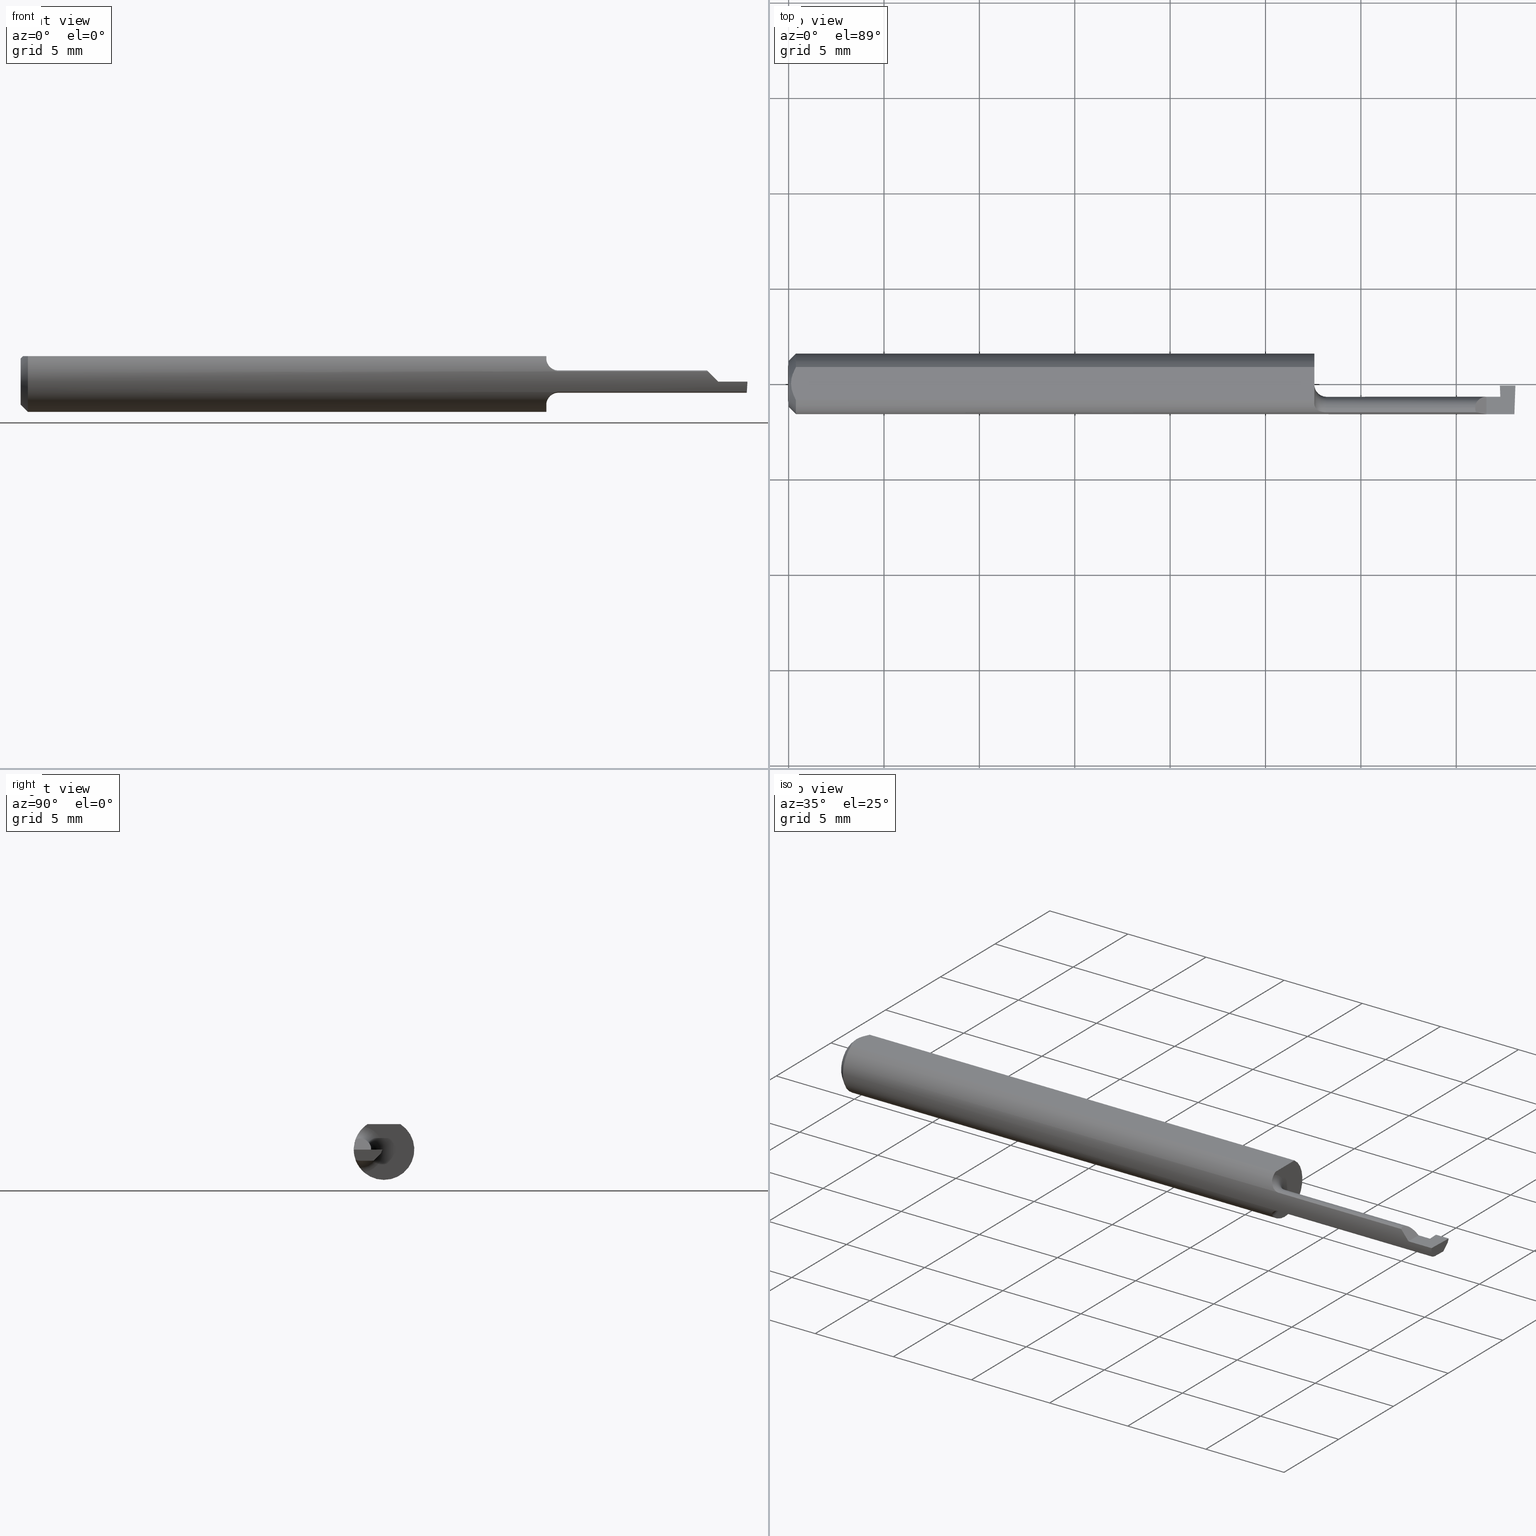
[diagram: canonical four-view strip — front | top / right | iso, engineering-drawing reading convention]
A machine part, canonical four-view strip (front | top / right | iso — engineering-drawing reading convention). The complete STEP part file that produces these views, byte-faithful:
ISO-10303-21;
HEADER;
FILE_DESCRIPTION (( 'STEP AP203' ),
    '1' );
FILE_NAME ('220557-GT031-6.STEP',
    '2024-07-12T18:00:54',
    ( '' ),
    ( '' ),
    'SwSTEP 2.0',
    'SolidWorks 2024',
    '' );
FILE_SCHEMA (( 'CONFIG_CONTROL_DESIGN' ));
ENDSEC;

DATA;
#1 = CARTESIAN_POINT ( 'NONE',  ( 1.099393845276374959, -0.05804125348544835611, 0.02346417240968139140 ) ) ;
#2 = CARTESIAN_POINT ( 'NONE',  ( 1.499497286446618505, -0.009611681314364212136, -0.01104076903408087590 ) ) ;
#3 = CARTESIAN_POINT ( 'NONE',  ( 0.01499999999999999944, 0.000000000000000000, 0.000000000000000000 ) ) ;
#4 = CARTESIAN_POINT ( 'NONE',  ( 1.084999999999999964, -0.04950000000000000233, 0.000000000000000000 ) ) ;
#5 = APPROVAL ( #369, 'UNSPECIFIED' ) ;
#6 = EDGE_CURVE ( 'NONE', #190, #484, #591, .T. ) ;
#7 = PLANE ( 'NONE',  #283 ) ;
#8 = CYLINDRICAL_SURFACE ( 'NONE', #696, 0.02299999999999999961 ) ;
#9 = DIRECTION ( 'NONE',  ( -0.03489949670250111491, -0.9993908270190957621, 1.586363504770579789E-16 ) ) ;
#10 = DIRECTION ( 'NONE',  ( 0.000000000000000000, 0.000000000000000000, 1.000000000000000000 ) ) ;
#11 = PERSON ( 'UNSPECIFIED', 'UNSPECIFIED', 'UNSPECIFIED', ('UNSPECIFIED'), ('UNSPECIFIED'), ('UNSPECIFIED') ) ;
#12 = ORIENTED_EDGE ( 'NONE', *, *, #338, .T. ) ;
#13 = AXIS2_PLACEMENT_3D ( 'NONE', #496, #662, #381 ) ;
#14 = CARTESIAN_POINT ( 'NONE',  ( 1.110000000000000098, -0.05886363636363634022, -0.02100767274234791038 ) ) ;
#15 = CARTESIAN_POINT ( 'NONE',  ( 1.468220325696992123, -0.004188607338854353004, -0.005617695058571033247 ) ) ;
#16 = ORIENTED_EDGE ( 'NONE', *, *, #317, .F. ) ;
#17 = CARTESIAN_POINT ( 'NONE',  ( 0.01499999999999999771, 0.03391164991562633374, 0.05250000000000000500 ) ) ;
#18 = DIRECTION ( 'NONE',  ( -0.000000000000000000, 1.000000000000000000, 1.224646799147353207E-16 ) ) ;
#19 = ORIENTED_EDGE ( 'NONE', *, *, #171, .T. ) ;
#20 = ADVANCED_FACE ( 'NONE', ( #652 ), #327, .F. ) ;
#21 = CARTESIAN_POINT ( 'NONE',  ( 1.498691949899088272, -0.003454321883942430751, -0.04998286624877786022 ) ) ;
#22 = EDGE_CURVE ( 'NONE', #193, #548, #637, .T. ) ;
#23 = CARTESIAN_POINT ( 'NONE',  ( 1.110000000000000098, -0.04950000000000000233, 0.000000000000000000 ) ) ;
#24 = EDGE_LOOP ( 'NONE', ( #417, #420, #620, #157, #223 ) ) ;
#25 = CARTESIAN_POINT ( 'NONE',  ( 1.084999999999999964, 0.000000000000000000, 0.000000000000000000 ) ) ;
#26 = LINE ( 'NONE', #296, #269 ) ;
#27 = APPROVAL ( #42, 'UNSPECIFIED' ) ;
#28 = VERTEX_POINT ( 'NONE', #52 ) ;
#29 = MECHANICAL_CONTEXT ( 'NONE', #445, 'mechanical' ) ;
#30 = CARTESIAN_POINT ( 'NONE',  ( 1.110000000000000098, -0.04950000000000000233, 0.02299999999999999961 ) ) ;
#31 = ORIENTED_EDGE ( 'NONE', *, *, #657, .F. ) ;
#32 = APPROVAL_DATE_TIME ( #480, #27 ) ;
#33 = CARTESIAN_POINT ( 'NONE',  ( 1.084999999999999964, -0.04093434343434342731, 0.04722954083620996973 ) ) ;
#34 = LOCAL_TIME ( 11, 0, 54.00000000000000000, #44 ) ;
#35 = ORIENTED_EDGE ( 'NONE', *, *, #661, .F. ) ;
#36 = CC_DESIGN_PERSON_AND_ORGANIZATION_ASSIGNMENT ( #583, #697, ( #514 ) ) ;
#37 = AXIS2_PLACEMENT_3D ( 'NONE', #21, #339, #510 ) ;
#38 = APPLICATION_PROTOCOL_DEFINITION ( 'international standard', 'config_control_design', 1994, #613 ) ;
#39 = DIRECTION ( 'NONE',  ( 0.000000000000000000, 0.000000000000000000, 1.000000000000000000 ) ) ;
#40 = ADVANCED_BREP_SHAPE_REPRESENTATION ( '220557-GT031-6', ( #198, #220 ), #401 ) ;
#41 = ORIENTED_EDGE ( 'NONE', *, *, #360, .T. ) ;
#42 = APPROVAL_STATUS ( 'not_yet_approved' ) ;
#43 = EDGE_LOOP ( 'NONE', ( #12, #368, #413, #90, #636, #364, #508 ) ) ;
#44 = COORDINATED_UNIVERSAL_TIME_OFFSET ( 8, 0, .BEHIND. ) ;
#45 = EDGE_CURVE ( 'NONE', #80, #548, #603, .T. ) ;
#46 = PLANE ( 'NONE',  #667 ) ;
#47 = VERTEX_POINT ( 'NONE', #550 ) ;
#48 = EDGE_LOOP ( 'NONE', ( #97, #493, #374, #94, #41, #270 ) ) ;
#49 = ADVANCED_FACE ( 'NONE', ( #227 ), #8, .T. ) ;
#50 = VECTOR ( 'NONE', #462, 39.37007874015748143 ) ;
#51 = CARTESIAN_POINT ( 'NONE',  ( 0.000000000000000000, 0.000000000000000000, 0.000000000000000000 ) ) ;
#52 = CARTESIAN_POINT ( 'NONE',  ( 1.084999999999999964, -0.04093434343434342731, 0.04722954083620996973 ) ) ;
#53 = EDGE_CURVE ( 'NONE', #671, #703, #278, .T. ) ;
#54 = DIRECTION ( 'NONE',  ( -0.000000000000000000, 1.000000000000000000, 0.000000000000000000 ) ) ;
#55 = CARTESIAN_POINT ( 'NONE',  ( 0.006056885874551373727, -0.01188654981375985957, 0.05250000000000001193 ) ) ;
#56 = ORIENTED_EDGE ( 'NONE', *, *, #226, .F. ) ;
#57 = FACE_OUTER_BOUND ( 'NONE', #578, .T. ) ;
#58 = CARTESIAN_POINT ( 'NONE',  ( 1.084999999999999964, -0.04950000000000000233, -0.02299999999999999961 ) ) ;
#59 = VECTOR ( 'NONE', #246, 39.37007874015748143 ) ;
#60 = VERTEX_POINT ( 'NONE', #547 ) ;
#61 = FACE_OUTER_BOUND ( 'NONE', #83, .T. ) ;
#62 = CARTESIAN_POINT ( 'NONE',  ( 1.084999999999999964, 0.000000000000000000, 0.000000000000000000 ) ) ;
#63 = B_SPLINE_CURVE_WITH_KNOTS ( 'NONE', 3,
 ( #17, #134, #561, #303, #461, #131 ),
 .UNSPECIFIED., .F., .F.,
 ( 4, 2, 4 ),
 ( 0.0009797930073890425730, 0.001428868798926340253, 0.001877944590463637717 ),
 .UNSPECIFIED. ) ;
#64 = LINE ( 'NONE', #665, #529 ) ;
#65 = EDGE_CURVE ( 'NONE', #687, #193, #438, .T. ) ;
#66 = DIRECTION ( 'NONE',  ( 0.000000000000000000, 0.000000000000000000, -1.000000000000000000 ) ) ;
#67 = ORIENTED_EDGE ( 'NONE', *, *, #124, .T. ) ;
#68 = CARTESIAN_POINT ( 'NONE',  ( 1.400000000000000133, -0.003500000000000001808, -8.064299172385322426E-18 ) ) ;
#69 = CARTESIAN_POINT ( 'NONE',  ( 0.01216049014016022493, -0.02867836381244416935, 0.05250000000000000500 ) ) ;
#70 = DESIGN_CONTEXT ( 'detailed design', #613, 'design' ) ;
#71 = ORIENTED_EDGE ( 'NONE', *, *, #282, .F. ) ;
#72 = CARTESIAN_POINT ( 'NONE',  ( 1.426526911934581365, -0.02649999999999999925, 0.01347308806541881732 ) ) ;
#73 = DIRECTION ( 'NONE',  ( -0.000000000000000000, 1.000000000000000000, -0.000000000000000000 ) ) ;
#74 = AXIS2_PLACEMENT_3D ( 'NONE', #347, #18, #10 ) ;
#75 = EDGE_LOOP ( 'NONE', ( #108, #468, #647, #479, #123, #323 ) ) ;
#76 = EDGE_CURVE ( 'NONE', #435, #228, #102, .T. ) ;
#77 = DIRECTION ( 'NONE',  ( -1.000000000000000000, -0.000000000000000000, -0.000000000000000000 ) ) ;
#78 = DIRECTION ( 'NONE',  ( -0.04932528479610023137, 0.7062460676987117880, 0.7062460676987095676 ) ) ;
#79 = VECTOR ( 'NONE', #73, 39.37007874015748143 ) ;
#80 = VERTEX_POINT ( 'NONE', #120 ) ;
#81 = DIRECTION ( 'NONE',  ( -1.000000000000000000, -0.000000000000000000, -0.000000000000000000 ) ) ;
#82 = DIRECTION ( 'NONE',  ( -1.000000000000000000, -0.000000000000000000, -0.000000000000000000 ) ) ;
#83 = EDGE_LOOP ( 'NONE', ( #359, #582, #607, #640 ) ) ;
#84 = EDGE_CURVE ( 'NONE', #193, #524, #334, .T. ) ;
#85 = CARTESIAN_POINT ( 'NONE',  ( 0.000000000000000000, 0.000000000000000000, -0.04749999999999999362 ) ) ;
#86 = EDGE_LOOP ( 'NONE', ( #101, #534, #387, #471 ) ) ;
#87 = VECTOR ( 'NONE', #698, 39.37007874015748143 ) ;
#88 = CARTESIAN_POINT ( 'NONE',  ( 0.000000000000000000, 0.000000000000000000, 0.000000000000000000 ) ) ;
#89 = CARTESIAN_POINT ( 'NONE',  ( 1.471402629758094660, -0.1009980330875088206, 3.560323435129999006E-18 ) ) ;
#90 = ORIENTED_EDGE ( 'NONE', *, *, #151, .F. ) ;
#91 = APPLICATION_PROTOCOL_DEFINITION ( 'international standard', 'config_control_design', 1994, #445 ) ;
#92 = DIRECTION ( 'NONE',  ( -1.000000000000000000, -0.000000000000000000, -0.000000000000000000 ) ) ;
#93 = LOCAL_TIME ( 11, 0, 54.00000000000000000, #306 ) ;
#94 = ORIENTED_EDGE ( 'NONE', *, *, #332, .T. ) ;
#95 = VECTOR ( 'NONE', #299, 39.37007874015748143 ) ;
#96 = CARTESIAN_POINT ( 'NONE',  ( 1.500000000000000222, 0.05811411188343153927, -0.02300000000000001349 ) ) ;
#97 = ORIENTED_EDGE ( 'NONE', *, *, #245, .F. ) ;
#98 = ADVANCED_FACE ( 'NONE', ( #491 ), #298, .F. ) ;
#99 = PERSON_AND_ORGANIZATION ( #11, #125 ) ;
#100 =( BOUNDED_CURVE ( )  B_SPLINE_CURVE ( 3, ( #689, #260, #635, #643 ),
 .UNSPECIFIED., .F., .F. ) 
 B_SPLINE_CURVE_WITH_KNOTS ( ( 4, 4 ),
 ( 0.5077952333512401051, 0.9270880441442735931 ),
 .UNSPECIFIED. ) 
 CURVE ( )  GEOMETRIC_REPRESENTATION_ITEM ( )  RATIONAL_B_SPLINE_CURVE ( ( 1.000000000000000000, 0.9854030425847046804, 0.9854030425847046804, 1.000000000000000000 ) ) 
 REPRESENTATION_ITEM ( '' )  );
#101 = ORIENTED_EDGE ( 'NONE', *, *, #128, .T. ) ;
#102 = CIRCLE ( 'NONE', #602, 0.06250000000000000000 ) ;
#103 = CARTESIAN_POINT ( 'NONE',  ( 1.091603424264790956, -0.05494411641100521021, 0.03000830826366647497 ) ) ;
#104 = VERTEX_POINT ( 'NONE', #432 ) ;
#105 = ADVANCED_FACE ( 'NONE', ( #163 ), #649, .F. ) ;
#106 = SHAPE_DEFINITION_REPRESENTATION ( #590, #40 ) ;
#107 = CARTESIAN_POINT ( 'NONE',  ( 1.497608834546441781, -0.06126942711424129134, -0.01426663133107638343 ) ) ;
#108 = ORIENTED_EDGE ( 'NONE', *, *, #457, .F. ) ;
#109 = CONICAL_SURFACE ( 'NONE', #617, 0.06250000000000000000, 0.7853981633974483900 ) ;
#110 = CIRCLE ( 'NONE', #543, 0.06250000000000000000 ) ;
#111 = LINE ( 'NONE', #222, #237 ) ;
#112 = EDGE_CURVE ( 'NONE', #253, #645, #365, .T. ) ;
#113 = CARTESIAN_POINT ( 'NONE',  ( 0.01499999999999999771, 0.03391164991562633374, 0.05250000000000000500 ) ) ;
#114 = DIRECTION ( 'NONE',  ( -1.000000000000000000, -0.000000000000000000, -0.000000000000000000 ) ) ;
#115 = LINE ( 'NONE', #437, #664 ) ;
#116 = DIRECTION ( 'NONE',  ( 0.000000000000000000, 0.000000000000000000, 1.000000000000000000 ) ) ;
#117 = VERTEX_POINT ( 'NONE', #615 ) ;
#118 = EDGE_CURVE ( 'NONE', #537, #430, #409, .T. ) ;
#119 = CARTESIAN_POINT ( 'NONE',  ( 1.499683146315743398, -0.006570912280283337271, -0.008000000000000012310 ) ) ;
#120 = CARTESIAN_POINT ( 'NONE',  ( 1.469605376252391959, -0.02647196950256634415, -0.02300000000000001002 ) ) ;
#121 = CARTESIAN_POINT ( 'NONE',  ( 1.468386709447757843, -0.006570912280283336404, -0.008000000000000008840 ) ) ;
#122 = DIRECTION ( 'NONE',  ( 0.000000000000000000, 0.000000000000000000, 1.000000000000000000 ) ) ;
#123 = ORIENTED_EDGE ( 'NONE', *, *, #234, .F. ) ;
#124 = EDGE_CURVE ( 'NONE', #305, #261, #481, .T. ) ;
#125 = ORGANIZATION ( 'UNSPECIFIED', 'UNSPECIFIED', '' ) ;
#126 = CARTESIAN_POINT ( 'NONE',  ( 0.000000000000000000, 0.03391164991562636150, 0.05249999999999998418 ) ) ;
#127 = CARTESIAN_POINT ( 'NONE',  ( 1.418992327257652342, -0.05886363636363636798, 0.02100767274234790691 ) ) ;
#128 = EDGE_CURVE ( 'NONE', #586, #671, #26, .T. ) ;
#129 = AXIS2_PLACEMENT_3D ( 'NONE', #25, #250, #392 ) ;
#130 = ORIENTED_EDGE ( 'NONE', *, *, #457, .T. ) ;
#131 = CARTESIAN_POINT ( 'NONE',  ( 0.004999999999989314207, 8.235553591830799656E-16, 0.05250000000000000500 ) ) ;
#132 = FACE_OUTER_BOUND ( 'NONE', #494, .T. ) ;
#133 = ORIENTED_EDGE ( 'NONE', *, *, #380, .F. ) ;
#134 = CARTESIAN_POINT ( 'NONE',  ( 0.01218419045468773464, 0.02872204407162096823, 0.05250000000000001193 ) ) ;
#135 = ADVANCED_FACE ( 'NONE', ( #520 ), #677, .T. ) ;
#136 = CARTESIAN_POINT ( 'NONE',  ( 1.440000000000000169, -0.1000000000000000056, 7.469896857675718968E-18 ) ) ;
#137 = VECTOR ( 'NONE', #553, 39.37007874015748854 ) ;
#138 = ORIENTED_EDGE ( 'NONE', *, *, #531, .T. ) ;
#139 = CARTESIAN_POINT ( 'NONE',  ( 1.084999999999999964, 0.03391164991562636150, 0.05250000000000000500 ) ) ;
#140 = ORIENTED_EDGE ( 'NONE', *, *, #6, .T. ) ;
#141 = PERSON_AND_ORGANIZATION_ROLE ( 'design_supplier' ) ;
#142 = AXIS2_PLACEMENT_3D ( 'NONE', #210, #92, #580 ) ;
#143 = LINE ( 'NONE', #89, #293 ) ;
#144 = ORIENTED_EDGE ( 'NONE', *, *, #22, .T. ) ;
#145 = AXIS2_PLACEMENT_3D ( 'NONE', #619, #82, #289 ) ;
#146 = DATE_AND_TIME ( #469, #414 ) ;
#147 = CARTESIAN_POINT ( 'NONE',  ( 1.466693932668380773, 0.05695174775936805156, -0.02300000000000001349 ) ) ;
#148 = ORIENTED_EDGE ( 'NONE', *, *, #302, .F. ) ;
#149 = PERSON_AND_ORGANIZATION ( #11, #125 ) ;
#150 = FACE_OUTER_BOUND ( 'NONE', #301, .T. ) ;
#151 = EDGE_CURVE ( 'NONE', #104, #671, #192, .T. ) ;
#152 = ORIENTED_EDGE ( 'NONE', *, *, #302, .T. ) ;
#153 = AXIS2_PLACEMENT_3D ( 'NONE', #51, #277, #490 ) ;
#154 = CARTESIAN_POINT ( 'NONE',  ( 1.084999999999999964, -0.04415400649228699848, -0.04443902475192727797 ) ) ;
#155 = ORIENTED_EDGE ( 'NONE', *, *, #6, .F. ) ;
#156 = DIRECTION ( 'NONE',  ( -1.000000000000000000, -0.000000000000000000, -0.000000000000000000 ) ) ;
#157 = ORIENTED_EDGE ( 'NONE', *, *, #661, .T. ) ;
#158 = DIRECTION ( 'NONE',  ( 0.000000000000000000, -0.3583679495453010455, -0.9335804264972014099 ) ) ;
#159 = DIRECTION ( 'NONE',  ( 0.9987827668610287368, 0.03485699000043690488, 0.03489949669461414605 ) ) ;
#160 = SECURITY_CLASSIFICATION ( '', '', #579 ) ;
#161 = APPROVAL_DATE_TIME ( #704, #5 ) ;
#162 = FACE_OUTER_BOUND ( 'NONE', #43, .T. ) ;
#163 = FACE_OUTER_BOUND ( 'NONE', #427, .T. ) ;
#164 = CIRCLE ( 'NONE', #563, 0.02299999999999999961 ) ;
#165 = B_SPLINE_CURVE_WITH_KNOTS ( 'NONE', 3,
 ( #177, #235, #450, #404, #304, #251 ),
 .UNSPECIFIED., .F., .F.,
 ( 4, 2, 4 ),
 ( 1.965804573186380129E-07, 0.0004062936322054141666, 0.0008123906839535096789 ),
 .UNSPECIFIED. ) ;
#166 = CARTESIAN_POINT ( 'NONE',  ( 2.324973294346407873E-32, -0.06250000000000000000, 1.867474214418933224E-16 ) ) ;
#167 = DIRECTION ( 'NONE',  ( -1.000000000000000000, -0.000000000000000000, -0.000000000000000000 ) ) ;
#168 = CLOSED_SHELL ( 'NONE', ( #135, #49, #98, #375, #518, #205, #194, #287, #187, #588, #20, #509, #455, #624, #405, #702, #532, #105, #284, #556 ) ) ;
#169 = CARTESIAN_POINT ( 'NONE',  ( 1.440000000000000169, -0.02650000000000000966, 7.469896857675718968E-18 ) ) ;
#170 = CARTESIAN_POINT ( 'NONE',  ( 1.469743911843602868, -0.003439101256495625050, -0.04996954135095477839 ) ) ;
#171 = EDGE_CURVE ( 'NONE', #564, #512, #165, .T. ) ;
#172 = CARTESIAN_POINT ( 'NONE',  ( 1.400000000000000133, -0.003500000000000001808, -8.064299172385322426E-18 ) ) ;
#173 = EDGE_LOOP ( 'NONE', ( #19, #612, #281 ) ) ;
#174 = ORIENTED_EDGE ( 'NONE', *, *, #657, .T. ) ;
#175 = AXIS2_PLACEMENT_3D ( 'NONE', #467, #189, #511 ) ;
#176 = CARTESIAN_POINT ( 'NONE',  ( 1.440000000000000169, -0.06250000000000000000, 7.469896857675718968E-18 ) ) ;
#177 = CARTESIAN_POINT ( 'NONE',  ( 1.110000000000000098, -0.05886363636363634022, -0.02100767274234791038 ) ) ;
#178 = EDGE_CURVE ( 'NONE', #694, #586, #184, .T. ) ;
#179 = ORIENTED_EDGE ( 'NONE', *, *, #252, .F. ) ;
#180 = CARTESIAN_POINT ( 'NONE',  ( 1.400000000000000133, -0.006570912280283336404, -0.008000000000000010575 ) ) ;
#181 = DIRECTION ( 'NONE',  ( 0.000000000000000000, 0.000000000000000000, 1.000000000000000000 ) ) ;
#182 = ORIENTED_EDGE ( 'NONE', *, *, #353, .T. ) ;
#183 = DIRECTION ( 'NONE',  ( 1.000000000000000000, 0.000000000000000000, 0.000000000000000000 ) ) ;
#184 = LINE ( 'NONE', #15, #599 ) ;
#185 = CIRCLE ( 'NONE', #495, 0.06250000000000000000 ) ;
#186 = VERTEX_POINT ( 'NONE', #622 ) ;
#187 = ADVANCED_FACE ( 'NONE', ( #351 ), #611, .F. ) ;
#188 = LINE ( 'NONE', #355, #436 ) ;
#189 = DIRECTION ( 'NONE',  ( -0.7071067811865489050, 0.000000000000000000, -0.7071067811865461294 ) ) ;
#190 = VERTEX_POINT ( 'NONE', #127 ) ;
#191 = DIRECTION ( 'NONE',  ( 0.000000000000000000, 0.000000000000000000, 1.000000000000000000 ) ) ;
#192 = LINE ( 'NONE', #240, #50 ) ;
#193 = VERTEX_POINT ( 'NONE', #291 ) ;
#194 = ADVANCED_FACE ( 'NONE', ( #342 ), #356, .T. ) ;
#195 = DATE_TIME_ROLE ( 'creation_date' ) ;
#196 = LOCAL_TIME ( 11, 0, 54.00000000000000000, #415 ) ;
#197 = DIRECTION ( 'NONE',  ( -1.000000000000000000, 0.000000000000000000, 1.244982809612622067E-16 ) ) ;
#198 = MANIFOLD_SOLID_BREP ( 'Front Angle', #168 ) ;
#199 = EDGE_LOOP ( 'NONE', ( #486, #292 ) ) ;
#200 = AXIS2_PLACEMENT_3D ( 'NONE', #286, #492, #539 ) ;
#201 = DIRECTION ( 'NONE',  ( -1.000000000000000000, -0.000000000000000000, -0.000000000000000000 ) ) ;
#202 = VERTEX_POINT ( 'NONE', #454 ) ;
#203 = AXIS2_PLACEMENT_3D ( 'NONE', #681, #459, #122 ) ;
#204 = PERSON_AND_ORGANIZATION ( #11, #125 ) ;
#205 = ADVANCED_FACE ( 'NONE', ( #132 ), #570, .T. ) ;
#206 = CARTESIAN_POINT ( 'NONE',  ( 1.085655463982612590, -0.04704581396278029182, -0.04134126699320148784 ) ) ;
#207 = VECTOR ( 'NONE', #167, 39.37007874015748143 ) ;
#208 = ORIENTED_EDGE ( 'NONE', *, *, #678, .F. ) ;
#209 =( NAMED_UNIT ( * ) SI_UNIT ( $, .STERADIAN. ) SOLID_ANGLE_UNIT ( ) );
#210 = CARTESIAN_POINT ( 'NONE',  ( 0.000000000000000000, 0.000000000000000000, 0.000000000000000000 ) ) ;
#211 = EDGE_LOOP ( 'NONE', ( #155, #397, #256, #273 ) ) ;
#212 = EDGE_CURVE ( 'NONE', #28, #435, #575, .T. ) ;
#213 = PLANE ( 'NONE',  #238 ) ;
#214 = ORIENTED_EDGE ( 'NONE', *, *, #572, .F. ) ;
#215 = LINE ( 'NONE', #431, #507 ) ;
#216 = CARTESIAN_POINT ( 'NONE',  ( 1.500000000000000222, -0.04950000000000000233, -0.02299999999999999614 ) ) ;
#217 = PRODUCT_RELATED_PRODUCT_CATEGORY ( 'detail', '', ( #701 ) ) ;
#218 = DIRECTION ( 'NONE',  ( 1.000000000000000000, 0.000000000000000000, 0.000000000000000000 ) ) ;
#219 = DIRECTION ( 'NONE',  ( -1.000000000000000000, -0.000000000000000000, -0.000000000000000000 ) ) ;
#220 = AXIS2_PLACEMENT_3D ( 'NONE', #88, #191, #315 ) ;
#221 = AXIS2_PLACEMENT_3D ( 'NONE', #180, #398, #346 ) ;
#222 = CARTESIAN_POINT ( 'NONE',  ( 1.496634250141845701, -0.09988246542503650960, 4.190300714858486122E-19 ) ) ;
#223 = ORIENTED_EDGE ( 'NONE', *, *, #329, .F. ) ;
#224 = ORIENTED_EDGE ( 'NONE', *, *, #112, .F. ) ;
#225 = CARTESIAN_POINT ( 'NONE',  ( 1.497938178933349906, -0.06249997390100388295, -5.711719386472008966E-05 ) ) ;
#226 = EDGE_CURVE ( 'NONE', #47, #645, #110, .T. ) ;
#227 = FACE_OUTER_BOUND ( 'NONE', #567, .T. ) ;
#228 = VERTEX_POINT ( 'NONE', #139 ) ;
#229 = CC_DESIGN_SECURITY_CLASSIFICATION ( #160, ( #503 ) ) ;
#230 = B_SPLINE_CURVE_WITH_KNOTS ( 'NONE', 3,
 ( #378, #648, #103, #1, #707, #447 ),
 .UNSPECIFIED., .F., .F.,
 ( 4, 2, 4 ),
 ( 0.0003511697577770737542, 0.0007558328471938553349, 0.001160495936610636807 ),
 .UNSPECIFIED. ) ;
#231 = CARTESIAN_POINT ( 'NONE',  ( 1.084999999999999964, -0.06250000000000001388, 0.05250000000000000500 ) ) ;
#232 = ORIENTED_EDGE ( 'NONE', *, *, #332, .F. ) ;
#233 = ORIENTED_EDGE ( 'NONE', *, *, #441, .T. ) ;
#234 = EDGE_CURVE ( 'NONE', #430, #548, #666, .T. ) ;
#235 = CARTESIAN_POINT ( 'NONE',  ( 1.104578158336205984, -0.05886363636363638879, -0.02100767274234780282 ) ) ;
#236 = ORIENTED_EDGE ( 'NONE', *, *, #465, .T. ) ;
#237 = VECTOR ( 'NONE', #601, 39.37007874015748143 ) ;
#238 = AXIS2_PLACEMENT_3D ( 'NONE', #422, #363, #197 ) ;
#239 = DIRECTION ( 'NONE',  ( 0.000000000000000000, 0.000000000000000000, 1.000000000000000000 ) ) ;
#240 = CARTESIAN_POINT ( 'NONE',  ( 1.499863463850860112, -0.004823293866947624131, -0.003447298382161623643 ) ) ;
#241 = ORIENTED_EDGE ( 'NONE', *, *, #407, .F. ) ;
#242 = DIRECTION ( 'NONE',  ( 0.000000000000000000, 0.000000000000000000, -1.000000000000000000 ) ) ;
#243 = DIRECTION ( 'NONE',  ( -1.000000000000000000, -0.000000000000000000, -0.000000000000000000 ) ) ;
#244 = ORIENTED_EDGE ( 'NONE', *, *, #465, .F. ) ;
#245 = EDGE_CURVE ( 'NONE', #512, #524, #385, .T. ) ;
#246 = DIRECTION ( 'NONE',  ( -1.000000000000000000, -0.000000000000000000, -0.000000000000000000 ) ) ;
#247 = DIRECTION ( 'NONE',  ( 1.000000000000000000, -0.000000000000000000, -0.000000000000000000 ) ) ;
#248 = ORIENTED_EDGE ( 'NONE', *, *, #380, .T. ) ;
#249 = B_SPLINE_CURVE_WITH_KNOTS ( 'NONE', 3,
 ( #33, #474, #483, #307 ),
 .UNSPECIFIED., .F., .F.,
 ( 4, 4 ),
 ( 3.010157611159452499E-05, 0.0003511697577770737542 ),
 .UNSPECIFIED. ) ;
#250 = DIRECTION ( 'NONE',  ( 1.000000000000000000, 0.000000000000000000, 0.000000000000000000 ) ) ;
#251 = CARTESIAN_POINT ( 'NONE',  ( 1.087018996248180880, -0.04950000000000028683, -0.03815756805667851886 ) ) ;
#252 = EDGE_CURVE ( 'NONE', #645, #117, #562, .T. ) ;
#253 = VERTEX_POINT ( 'NONE', #526 ) ;
#254 = DATE_AND_TIME ( #362, #93 ) ;
#255 = DIRECTION ( 'NONE',  ( 0.000000000000000000, 0.000000000000000000, -1.000000000000000000 ) ) ;
#256 = ORIENTED_EDGE ( 'NONE', *, *, #118, .T. ) ;
#257 = PERSON_AND_ORGANIZATION ( #11, #125 ) ;
#258 = APPROVAL_PERSON_ORGANIZATION ( #638, #27, #525 ) ;
#259 = EDGE_CURVE ( 'NONE', #512, #435, #668, .T. ) ;
#260 = CARTESIAN_POINT ( 'NONE',  ( 1.497584964514770078, -0.05590579956362994041, -0.02232605334347043113 ) ) ;
#261 = VERTEX_POINT ( 'NONE', #30 ) ;
#262 = EDGE_CURVE ( 'NONE', #586, #348, #418, .T. ) ;
#263 = AXIS2_PLACEMENT_3D ( 'NONE', #272, #416, #255 ) ;
#264 = CARTESIAN_POINT ( 'NONE',  ( 1.110000000000000098, -0.04950000000000000233, 0.000000000000000000 ) ) ;
#265 = ORIENTED_EDGE ( 'NONE', *, *, #441, .F. ) ;
#266 = COORDINATED_UNIVERSAL_TIME_OFFSET ( 8, 0, .BEHIND. ) ;
#267 = CARTESIAN_POINT ( 'NONE',  ( 1.467861796697768284, -0.002402508794499298196, 0.002859062338047485292 ) ) ;
#268 = CC_DESIGN_PERSON_AND_ORGANIZATION_ASSIGNMENT ( #257, #473, ( #503 ) ) ;
#269 = VECTOR ( 'NONE', #247, 39.37007874015748143 ) ;
#270 = ORIENTED_EDGE ( 'NONE', *, *, #282, .T. ) ;
#271 =( NAMED_UNIT ( * ) PLANE_ANGLE_UNIT ( ) SI_UNIT ( $, .RADIAN. ) );
#272 = CARTESIAN_POINT ( 'NONE',  ( 1.110000000000000098, -0.04950000000000000233, 0.04800000000000000794 ) ) ;
#273 = ORIENTED_EDGE ( 'NONE', *, *, #609, .F. ) ;
#274 = CARTESIAN_POINT ( 'NONE',  ( 1.110000000000000098, -0.04949999999999999539, -0.02299999999999999961 ) ) ;
#275 = ORIENTED_EDGE ( 'NONE', *, *, #426, .T. ) ;
#276 = VECTOR ( 'NONE', #504, 39.37007874015748143 ) ;
#277 = DIRECTION ( 'NONE',  ( -1.000000000000000000, -0.000000000000000000, -0.000000000000000000 ) ) ;
#278 = LINE ( 'NONE', #2, #137 ) ;
#279 = FACE_OUTER_BOUND ( 'NONE', #371, .T. ) ;
#280 = ORIENTED_EDGE ( 'NONE', *, *, #84, .T. ) ;
#281 = ORIENTED_EDGE ( 'NONE', *, *, #329, .T. ) ;
#282 = EDGE_CURVE ( 'NONE', #261, #524, #488, .T. ) ;
#283 = AXIS2_PLACEMENT_3D ( 'NONE', #172, #592, #158 ) ;
#284 = ADVANCED_FACE ( 'NONE', ( #533 ), #46, .F. ) ;
#285 = DIRECTION ( 'NONE',  ( -1.000000000000000000, -0.000000000000000000, -0.000000000000000000 ) ) ;
#286 = CARTESIAN_POINT ( 'NONE',  ( 1.084999999999999964, 0.07349999999999998201, 0.000000000000000000 ) ) ;
#287 = ADVANCED_FACE ( 'NONE', ( #685 ), #213, .F. ) ;
#288 = CARTESIAN_POINT ( 'NONE',  ( 1.497791001293266477, -0.04949999999999999539, -0.02299999999999999614 ) ) ;
#289 = DIRECTION ( 'NONE',  ( 0.000000000000000000, 0.000000000000000000, 1.000000000000000000 ) ) ;
#290 = CARTESIAN_POINT ( 'NONE',  ( 1.418992327257652342, -0.05886363636363636798, 0.02100767274234790691 ) ) ;
#291 = CARTESIAN_POINT ( 'NONE',  ( 1.469604396811383440, -0.04950000000000000233, -0.02299999999999999961 ) ) ;
#292 = ORIENTED_EDGE ( 'NONE', *, *, #317, .T. ) ;
#293 = VECTOR ( 'NONE', #639, 39.37007874015748854 ) ;
#294 = VECTOR ( 'NONE', #316, 39.37007874015748854 ) ;
#295 = PLANE ( 'NONE',  #37 ) ;
#296 = CARTESIAN_POINT ( 'NONE',  ( 1.400000000000000133, -0.006570912280283336404, -0.008000000000000010575 ) ) ;
#297 = ORIENTED_EDGE ( 'NONE', *, *, #684, .T. ) ;
#298 = TOROIDAL_SURFACE ( 'NONE', #388, 0.04800000000000000794, 0.02500000000000007425 ) ;
#299 = DIRECTION ( 'NONE',  ( -1.000000000000000000, -0.000000000000000000, -0.000000000000000000 ) ) ;
#300 = CARTESIAN_POINT ( 'NONE',  ( 0.009676924495017957123, -0.02328413057436891712, 0.05250000000000001193 ) ) ;
#301 = EDGE_LOOP ( 'NONE', ( #297, #527, #393, #248, #182 ) ) ;
#302 = EDGE_CURVE ( 'NONE', #377, #47, #700, .T. ) ;
#303 = CARTESIAN_POINT ( 'NONE',  ( 0.006063917085846147297, 0.01190810954070469288, 0.05250000000000001887 ) ) ;
#304 = CARTESIAN_POINT ( 'NONE',  ( 1.088742250285846369, -0.05260163983985812614, -0.03413395806547173811 ) ) ;
#305 = VERTEX_POINT ( 'NONE', #584 ) ;
#306 = COORDINATED_UNIVERSAL_TIME_OFFSET ( 8, 0, .BEHIND. ) ;
#307 = CARTESIAN_POINT ( 'NONE',  ( 1.087018996248179992, -0.04950000000000040479, 0.03815756805667906010 ) ) ;
#308 = ORIENTED_EDGE ( 'NONE', *, *, #538, .F. ) ;
#309 = LINE ( 'NONE', #470, #326 ) ;
#310 = ORIENTED_EDGE ( 'NONE', *, *, #178, .F. ) ;
#311 =( CONVERSION_BASED_UNIT ( 'INCH', #625 ) LENGTH_UNIT ( ) NAMED_UNIT ( #630 ) );
#312 = DIRECTION ( 'NONE',  ( 0.000000000000000000, 0.000000000000000000, 1.000000000000000000 ) ) ;
#313 = ORIENTED_EDGE ( 'NONE', *, *, #234, .T. ) ;
#314 = CIRCLE ( 'NONE', #153, 0.04749999999999999362 ) ;
#315 = DIRECTION ( 'NONE',  ( 1.000000000000000000, 0.000000000000000000, 0.000000000000000000 ) ) ;
#316 = DIRECTION ( 'NONE',  ( -0.04508216391661056671, 0.3580035905404790886, 0.9326312388381169383 ) ) ;
#317 = EDGE_CURVE ( 'NONE', #60, #377, #328, .T. ) ;
#318 = ORIENTED_EDGE ( 'NONE', *, *, #112, .T. ) ;
#319 = PERSON_AND_ORGANIZATION_ROLE ( 'design_owner' ) ;
#320 = DIRECTION ( 'NONE',  ( 0.9993915692023307429, -4.250667839517553449E-05, 0.03487821097025042144 ) ) ;
#321 = ORIENTED_EDGE ( 'NONE', *, *, #124, .F. ) ;
#322 = CARTESIAN_POINT ( 'NONE',  ( 1.084999999999999964, -0.04093434343434342731, -0.04722954083620996973 ) ) ;
#323 = ORIENTED_EDGE ( 'NONE', *, *, #118, .F. ) ;
#324 =( BOUNDED_CURVE ( )  B_SPLINE_CURVE ( 3, ( #176, #341, #557, #290 ),
 .UNSPECIFIED., .F., .T. ) 
 B_SPLINE_CURVE_WITH_KNOTS ( ( 4, 4 ),
 ( 4.712388980384689674, 5.055186081087965633 ),
 .UNSPECIFIED. ) 
 CURVE ( )  GEOMETRIC_REPRESENTATION_ITEM ( )  RATIONAL_B_SPLINE_CURVE ( ( 1.000000000000000000, 0.9902314620528109845, 0.9902314620528109845, 1.000000000000000000 ) ) 
 REPRESENTATION_ITEM ( '' )  );
#325 = CARTESIAN_POINT ( 'NONE',  ( 1.440000000000000169, -0.06250000000000000000, 7.469896857675718968E-18 ) ) ;
#326 = VECTOR ( 'NONE', #629, 39.37007874015748143 ) ;
#327 = PLANE ( 'NONE',  #659 ) ;
#328 = CIRCLE ( 'NONE', #142, 0.04749999999999999362 ) ;
#329 = EDGE_CURVE ( 'NONE', #524, #564, #164, .T. ) ;
#330 = CARTESIAN_POINT ( 'NONE',  ( 1.497516218632006790, -0.05886363636363634716, -0.02100767274234790691 ) ) ;
#331 = CARTESIAN_POINT ( 'NONE',  ( 1.470546600267760518, -0.02643910123568555745, -0.04996955842635109057 ) ) ;
#332 = EDGE_CURVE ( 'NONE', #28, #186, #249, .T. ) ;
#333 = FACE_OUTER_BOUND ( 'NONE', #540, .T. ) ;
#334 = LINE ( 'NONE', #58, #446 ) ;
#335 = CIRCLE ( 'NONE', #129, 0.06250000000000000000 ) ;
#336 = CARTESIAN_POINT ( 'NONE',  ( 1.087018996248180880, -0.04950000000000028683, -0.03815756805667851886 ) ) ;
#337 = DIRECTION ( 'NONE',  ( 1.000000000000000000, 0.000000000000000000, 0.000000000000000000 ) ) ;
#338 = EDGE_CURVE ( 'NONE', #460, #687, #100, .T. ) ;
#339 = DIRECTION ( 'NONE',  ( -0.9990483607430195034, 0.03488753751661556601, 0.02617694830785934762 ) ) ;
#340 = CARTESIAN_POINT ( 'NONE',  ( 1.110000000000000098, -0.04950000000000000233, 0.000000000000000000 ) ) ;
#341 = CARTESIAN_POINT ( 'NONE',  ( 1.432823202637437676, -0.06250000000000001388, 0.007176797362562483025 ) ) ;
#342 = FACE_OUTER_BOUND ( 'NONE', #699, .T. ) ;
#343 = CC_DESIGN_DATE_AND_TIME_ASSIGNMENT ( #146, #195, ( #514 ) ) ;
#344 = UNCERTAINTY_MEASURE_WITH_UNIT (LENGTH_MEASURE( 1.000000000000000082E-05 ), #311, 'distance_accuracy_value', 'NONE');
#345 = ORIENTED_EDGE ( 'NONE', *, *, #695, .T. ) ;
#346 = DIRECTION ( 'NONE',  ( 0.000000000000000000, -0.7071067811865486830, -0.7071067811865464625 ) ) ;
#347 = CARTESIAN_POINT ( 'NONE',  ( 1.110000000000000098, -0.04949999999999999539, -0.04800000000000000794 ) ) ;
#348 = VERTEX_POINT ( 'NONE', #373 ) ;
#349 = AXIS2_PLACEMENT_3D ( 'NONE', #96, #598, #386 ) ;
#350 = LINE ( 'NONE', #466, #551 ) ;
#351 = FACE_OUTER_BOUND ( 'NONE', #211, .T. ) ;
#352 = ORIENTED_EDGE ( 'NONE', *, *, #262, .F. ) ;
#353 = EDGE_CURVE ( 'NONE', #80, #694, #376, .T. ) ;
#354 = VECTOR ( 'NONE', #489, 39.37007874015748854 ) ;
#355 = CARTESIAN_POINT ( 'NONE',  ( 1.084999999999999964, -0.04950000000000000233, 0.02299999999999999961 ) ) ;
#356 = PLANE ( 'NONE',  #452 ) ;
#357 = ORIENTED_EDGE ( 'NONE', *, *, #382, .F. ) ;
#358 = CARTESIAN_POINT ( 'NONE',  ( 1.084999999999999964, -0.02650000000000000272, 5.166678659892382429E-17 ) ) ;
#359 = ORIENTED_EDGE ( 'NONE', *, *, #604, .T. ) ;
#360 = EDGE_CURVE ( 'NONE', #186, #261, #476, .T. ) ;
#361 = VECTOR ( 'NONE', #542, 39.37007874015748143 ) ;
#362 = CALENDAR_DATE ( 2024, 12, 7 ) ;
#363 = DIRECTION ( 'NONE',  ( -1.244982809612622067E-16, 0.000000000000000000, -1.000000000000000000 ) ) ;
#364 = ORIENTED_EDGE ( 'NONE', *, *, #531, .F. ) ;
#365 = B_SPLINE_CURVE_WITH_KNOTS ( 'NONE', 3,
 ( #596, #384, #55, #300, #69, #515 ),
 .UNSPECIFIED., .F., .F.,
 ( 4, 2, 4 ),
 ( 0.001877944590463637717, 0.002327931134338583757, 0.002777917678213529581 ),
 .UNSPECIFIED. ) ;
#366 = DATE_TIME_ROLE ( 'classification_date' ) ;
#367 = CARTESIAN_POINT ( 'NONE',  ( 1.469605376252392182, -1.494890182199352102, -0.02478958664967752246 ) ) ;
#368 = ORIENTED_EDGE ( 'NONE', *, *, #581, .F. ) ;
#369 = APPROVAL_STATUS ( 'not_yet_approved' ) ;
#370 = PLANE ( 'NONE',  #349 ) ;
#371 = EDGE_LOOP ( 'NONE', ( #497, #265, #682, #674 ) ) ;
#372 = VECTOR ( 'NONE', #402, 39.37007874015748143 ) ;
#373 = CARTESIAN_POINT ( 'NONE',  ( 1.467999999999999972, -0.003500000000000001808, -8.064299172385322426E-18 ) ) ;
#374 = ORIENTED_EDGE ( 'NONE', *, *, #212, .F. ) ;
#375 = ADVANCED_FACE ( 'NONE', ( #485 ), #541, .F. ) ;
#376 = LINE ( 'NONE', #147, #451 ) ;
#377 = VERTEX_POINT ( 'NONE', #85 ) ;
#378 = CARTESIAN_POINT ( 'NONE',  ( 1.087018996248179992, -0.04950000000000040479, 0.03815756805667906010 ) ) ;
#379 = DIRECTION ( 'NONE',  ( 0.03492071764873296014, 0.000000000000000000, -0.9993900857417475914 ) ) ;
#380 = EDGE_CURVE ( 'NONE', #193, #80, #309, .T. ) ;
#381 = DIRECTION ( 'NONE',  ( 0.000000000000000000, 0.000000000000000000, 1.000000000000000000 ) ) ;
#382 = EDGE_CURVE ( 'NONE', #348, #548, #143, .T. ) ;
#383 = VECTOR ( 'NONE', #54, 39.37007874015748143 ) ;
#384 = CARTESIAN_POINT ( 'NONE',  ( 0.004999999999998634009, -0.005964525438754507587, 0.05250000000000000500 ) ) ;
#385 = CIRCLE ( 'NONE', #74, 0.02500000000000007425 ) ;
#386 = DIRECTION ( 'NONE',  ( 0.000000000000000000, -1.000000000000000000, 1.586599532494064286E-16 ) ) ;
#387 = ORIENTED_EDGE ( 'NONE', *, *, #684, .F. ) ;
#388 = AXIS2_PLACEMENT_3D ( 'NONE', #340, #219, #555 ) ;
#389 = CARTESIAN_POINT ( 'NONE',  ( 1.497750868070190311, -0.06249343286152817672, -0.007214590606946776584 ) ) ;
#390 = CARTESIAN_POINT ( 'NONE',  ( 1.469604969856262988, -0.03602691193458118502, -0.02299999999999999614 ) ) ;
#391 = ORIENTED_EDGE ( 'NONE', *, *, #252, .T. ) ;
#392 = DIRECTION ( 'NONE',  ( 0.000000000000000000, 0.000000000000000000, -1.000000000000000000 ) ) ;
#393 = ORIENTED_EDGE ( 'NONE', *, *, #65, .T. ) ;
#394 = AXIS2_PLACEMENT_3D ( 'NONE', #412, #670, #181 ) ;
#395 = CYLINDRICAL_SURFACE ( 'NONE', #644, 0.02299999999999999961 ) ;
#396 = CARTESIAN_POINT ( 'NONE',  ( 0.01499999999999999944, 0.000000000000000000, 0.000000000000000000 ) ) ;
#397 = ORIENTED_EDGE ( 'NONE', *, *, #695, .F. ) ;
#398 = DIRECTION ( 'NONE',  ( 0.000000000000000000, -0.7071067811865464625, 0.7071067811865486830 ) ) ;
#399 = DIRECTION ( 'NONE',  ( 1.000000000000000000, 0.000000000000000000, -0.000000000000000000 ) ) ;
#400 = EDGE_LOOP ( 'NONE', ( #571, #280, #71, #560, #440, #313 ) ) ;
#401 =( GEOMETRIC_REPRESENTATION_CONTEXT ( 3 ) GLOBAL_UNCERTAINTY_ASSIGNED_CONTEXT ( ( #344 ) ) GLOBAL_UNIT_ASSIGNED_CONTEXT ( ( #311, #271, #209 ) ) REPRESENTATION_CONTEXT ( 'NONE', 'WORKASPACE' ) );
#402 = DIRECTION ( 'NONE',  ( 1.000000000000000000, -0.000000000000000000, -0.000000000000000000 ) ) ;
#403 = AXIS2_PLACEMENT_3D ( 'NONE', #554, #183, #242 ) ;
#404 = CARTESIAN_POINT ( 'NONE',  ( 1.091604359762833321, -0.05495195758859176133, -0.02999640689160477935 ) ) ;
#405 = ADVANCED_FACE ( 'NONE', ( #150 ), #370, .F. ) ;
#406 = ORIENTED_EDGE ( 'NONE', *, *, #226, .T. ) ;
#407 = EDGE_CURVE ( 'NONE', #60, #253, #115, .T. ) ;
#408 = FACE_OUTER_BOUND ( 'NONE', #24, .T. ) ;
#409 = LINE ( 'NONE', #136, #79 ) ;
#410 = ORIENTED_EDGE ( 'NONE', *, *, #353, .F. ) ;
#411 = CARTESIAN_POINT ( 'NONE',  ( 1.498766306527641756, -0.02157091228028337054, -0.02299999999999999614 ) ) ;
#412 = CARTESIAN_POINT ( 'NONE',  ( 1.084999999999999964, -0.04950000000000000233, 0.000000000000000000 ) ) ;
#413 = ORIENTED_EDGE ( 'NONE', *, *, #53, .F. ) ;
#414 = LOCAL_TIME ( 11, 0, 54.00000000000000000, #266 ) ;
#415 = COORDINATED_UNIVERSAL_TIME_OFFSET ( 8, 0, .BEHIND. ) ;
#416 = DIRECTION ( 'NONE',  ( 0.000000000000000000, -1.000000000000000000, 0.000000000000000000 ) ) ;
#417 = ORIENTED_EDGE ( 'NONE', *, *, #84, .F. ) ;
#418 = LINE ( 'NONE', #267, #294 ) ;
#419 = CC_DESIGN_PERSON_AND_ORGANIZATION_ASSIGNMENT ( #99, #319, ( #701 ) ) ;
#420 = ORIENTED_EDGE ( 'NONE', *, *, #65, .F. ) ;
#421 = APPROVAL_ROLE ( '' ) ;
#422 = CARTESIAN_POINT ( 'NONE',  ( 1.500000000000000222, -0.1000000000000000056, 0.000000000000000000 ) ) ;
#423 = VERTEX_POINT ( 'NONE', #113 ) ;
#424 = PERSON_AND_ORGANIZATION ( #11, #125 ) ;
#425 = CARTESIAN_POINT ( 'NONE',  ( 1.110000000000000098, -0.04950000000000000233, 0.000000000000000000 ) ) ;
#426 = EDGE_CURVE ( 'NONE', #460, #530, #522, .T. ) ;
#427 = EDGE_LOOP ( 'NONE', ( #352, #310, #410, #475, #357 ) ) ;
#428 = APPROVAL_ROLE ( '' ) ;
#429 = CARTESIAN_POINT ( 'NONE',  ( 1.087018996248180880, -0.04950000000000028683, -0.03815756805667851886 ) ) ;
#430 = VERTEX_POINT ( 'NONE', #169 ) ;
#431 = CARTESIAN_POINT ( 'NONE',  ( 1.289000000000000146, -0.05886363636363634716, 0.02100767274234790691 ) ) ;
#432 = CARTESIAN_POINT ( 'NONE',  ( 1.499999999999999778, -0.003500000000000009614, -4.401903505416048996E-17 ) ) ;
#433 = DIRECTION ( 'NONE',  ( 0.02616100201822768243, -0.0009135623211514310024, 0.9996573249755575929 ) ) ;
#434 = CC_DESIGN_APPROVAL ( #5, ( #160 ) ) ;
#435 = VERTEX_POINT ( 'NONE', #322 ) ;
#436 = VECTOR ( 'NONE', #81, 39.37007874015748143 ) ;
#437 = CARTESIAN_POINT ( 'NONE',  ( 0.01499999999999999944, 7.654042494670957545E-18, 0.06250000000000000000 ) ) ;
#438 = LINE ( 'NONE', #216, #207 ) ;
#439 = CC_DESIGN_PERSON_AND_ORGANIZATION_ASSIGNMENT ( #149, #141, ( #503 ) ) ;
#440 = ORIENTED_EDGE ( 'NONE', *, *, #609, .T. ) ;
#441 = EDGE_CURVE ( 'NONE', #117, #228, #546, .T. ) ;
#442 = CALENDAR_DATE ( 2024, 12, 7 ) ;
#443 = CARTESIAN_POINT ( 'NONE',  ( 1.497516218632006790, -0.05886363636363634716, -0.02100767274234790691 ) ) ;
#444 = CARTESIAN_POINT ( 'NONE',  ( 1.468802687828234754, -0.02650000000000001660, 1.942005867998327689E-18 ) ) ;
#445 = APPLICATION_CONTEXT ( 'configuration controlled 3d designs of mechanical parts and assemblies' ) ;
#446 = VECTOR ( 'NONE', #285, 39.37007874015748143 ) ;
#447 = CARTESIAN_POINT ( 'NONE',  ( 1.110000000000000098, -0.05886363636363635410, 0.02100767274234789997 ) ) ;
#448 = CARTESIAN_POINT ( 'NONE',  ( 0.000000000000000000, 0.000000000000000000, 0.000000000000000000 ) ) ;
#449 = FACE_OUTER_BOUND ( 'NONE', #86, .T. ) ;
#450 = CARTESIAN_POINT ( 'NONE',  ( 1.099467156020460523, -0.05806285849851711839, -0.02341381071518016527 ) ) ;
#451 = VECTOR ( 'NONE', #528, 39.37007874015748854 ) ;
#452 = AXIS2_PLACEMENT_3D ( 'NONE', #573, #506, #399 ) ;
#453 = DIRECTION ( 'NONE',  ( 1.000000000000000000, 0.000000000000000000, 0.000000000000000000 ) ) ;
#454 = CARTESIAN_POINT ( 'NONE',  ( 1.497939674599986448, -0.06249999999999997224, 1.283091683266196761E-19 ) ) ;
#455 = ADVANCED_FACE ( 'NONE', ( #279 ), #595, .T. ) ;
#456 = ORIENTED_EDGE ( 'NONE', *, *, #360, .F. ) ;
#457 = EDGE_CURVE ( 'NONE', #202, #537, #605, .T. ) ;
#458 = CARTESIAN_POINT ( 'NONE',  ( 1.440000000000000169, -0.02650000000000000966, 7.469896857675718968E-18 ) ) ;
#459 = DIRECTION ( 'NONE',  ( -1.000000000000000000, -0.000000000000000000, -0.000000000000000000 ) ) ;
#460 = VERTEX_POINT ( 'NONE', #443 ) ;
#461 = CARTESIAN_POINT ( 'NONE',  ( 0.004999999999999040802, 0.005952453510029875015, 0.05249999999999999806 ) ) ;
#462 = DIRECTION ( 'NONE',  ( -0.03695079825115733102, -0.3581232150799830150, -0.9329428714178475968 ) ) ;
#463 = CC_DESIGN_DATE_AND_TIME_ASSIGNMENT ( #634, #366, ( #160 ) ) ;
#464 = ORIENTED_EDGE ( 'NONE', *, *, #499, .T. ) ;
#465 = EDGE_CURVE ( 'NONE', #186, #305, #230, .T. ) ;
#466 = CARTESIAN_POINT ( 'NONE',  ( 1.501547082283226420, 0.05806008657963421943, -0.02300000000000001349 ) ) ;
#467 = CARTESIAN_POINT ( 'NONE',  ( 1.440000000000000169, -0.1000000000000000056, 7.469896857675718968E-18 ) ) ;
#468 = ORIENTED_EDGE ( 'NONE', *, *, #482, .T. ) ;
#469 = CALENDAR_DATE ( 2024, 12, 7 ) ;
#470 = CARTESIAN_POINT ( 'NONE',  ( 1.469608973969656729, 0.05811540449146365001, -0.02300000000000001349 ) ) ;
#471 = ORIENTED_EDGE ( 'NONE', *, *, #178, .T. ) ;
#472 = APPROVAL_PERSON_ORGANIZATION ( #576, #545, #421 ) ;
#473 = PERSON_AND_ORGANIZATION_ROLE ( 'creator' ) ;
#474 = CARTESIAN_POINT ( 'NONE',  ( 1.084999999999999520, -0.04415449936013654542, 0.04443859757814036526 ) ) ;
#475 = ORIENTED_EDGE ( 'NONE', *, *, #45, .T. ) ;
#476 = CIRCLE ( 'NONE', #263, 0.02500000000000007425 ) ;
#477 = APPROVAL_DATE_TIME ( #254, #545 ) ;
#478 = DIRECTION ( 'NONE',  ( 0.03487821100175970274, 0.000000000000000000, -0.9993915701051898637 ) ) ;
#479 = ORIENTED_EDGE ( 'NONE', *, *, #382, .T. ) ;
#480 = DATE_AND_TIME ( #628, #196 ) ;
#481 = CIRCLE ( 'NONE', #568, 0.02299999999999999961 ) ;
#482 = EDGE_CURVE ( 'NONE', #202, #104, #111, .T. ) ;
#483 = CARTESIAN_POINT ( 'NONE',  ( 1.085650379969449686, -0.04703666338055135371, 0.04135313760874536476 ) ) ;
#484 = VERTEX_POINT ( 'NONE', #498 ) ;
#485 = FACE_OUTER_BOUND ( 'NONE', #48, .T. ) ;
#486 = ORIENTED_EDGE ( 'NONE', *, *, #538, .T. ) ;
#487 = CARTESIAN_POINT ( 'NONE',  ( 1.497938178933349906, -0.06249997390100388295, -5.711719386472008966E-05 ) ) ;
#488 = CIRCLE ( 'NONE', #691, 0.02299999999999999961 ) ;
#489 = DIRECTION ( 'NONE',  ( -0.03487823687206274836, -0.001217974870087546639, 0.9993908270190957621 ) ) ;
#490 = DIRECTION ( 'NONE',  ( 0.000000000000000000, 0.000000000000000000, 1.000000000000000000 ) ) ;
#491 = FACE_OUTER_BOUND ( 'NONE', #173, .T. ) ;
#492 = DIRECTION ( 'NONE',  ( 1.000000000000000000, 0.000000000000000000, 0.000000000000000000 ) ) ;
#493 = ORIENTED_EDGE ( 'NONE', *, *, #259, .T. ) ;
#494 = EDGE_LOOP ( 'NONE', ( #275, #138, #130, #345, #623, #244, #232, #208, #179, #56, #31, #589, #690, #574, #608, #35 ) ) ;
#495 = AXIS2_PLACEMENT_3D ( 'NONE', #569, #672, #618 ) ;
#496 = CARTESIAN_POINT ( 'NONE',  ( 1.110000000000000098, -0.04950000000000000233, 0.000000000000000000 ) ) ;
#497 = ORIENTED_EDGE ( 'NONE', *, *, #76, .T. ) ;
#498 = CARTESIAN_POINT ( 'NONE',  ( 1.417000000000000259, -0.04950000000000000233, 0.02299999999999999961 ) ) ;
#499 = EDGE_CURVE ( 'NONE', #305, #190, #215, .T. ) ;
#500 = CARTESIAN_POINT ( 'NONE',  ( 1.469604396811383440, -0.04950000000000000233, -0.02299999999999999961 ) ) ;
#501 = AXIS2_PLACEMENT_3D ( 'NONE', #170, #159, #379 ) ;
#502 = CARTESIAN_POINT ( 'NONE',  ( 1.469434331949009076, -0.02157091228028337054, -0.02299999999999999614 ) ) ;
#503 = PRODUCT_DEFINITION_FORMATION_WITH_SPECIFIED_SOURCE ( 'ANY', '', #701, .NOT_KNOWN. ) ;
#504 = DIRECTION ( 'NONE',  ( 1.000000000000000000, 0.000000000000000000, 0.000000000000000000 ) ) ;
#505 = PLANE ( 'NONE',  #221 ) ;
#506 = DIRECTION ( 'NONE',  ( 0.000000000000000000, -0.000000000000000000, 1.000000000000000000 ) ) ;
#507 = VECTOR ( 'NONE', #549, 39.37007874015748143 ) ;
#508 = ORIENTED_EDGE ( 'NONE', *, *, #426, .F. ) ;
#509 = ADVANCED_FACE ( 'NONE', ( #333 ), #631, .F. ) ;
#510 = DIRECTION ( 'NONE',  ( -0.03489949670250112185, -0.9993908270190957621, 0.000000000000000000 ) ) ;
#511 = DIRECTION ( 'NONE',  ( -0.7071067811865461294, 0.000000000000000000, 0.7071067811865489050 ) ) ;
#512 = VERTEX_POINT ( 'NONE', #336 ) ;
#513 = LINE ( 'NONE', #614, #59 ) ;
#514 = PRODUCT_DEFINITION ( 'UNKNOWN', '', #503, #70 ) ;
#515 = CARTESIAN_POINT ( 'NONE',  ( 0.01499999999999999944, -0.03391164991562636150, 0.05249999999999998418 ) ) ;
#516 =( BOUNDED_CURVE ( )  B_SPLINE_CURVE ( 3, ( #669, #621, #72, #458 ),
 .UNSPECIFIED., .F., .T. ) 
 B_SPLINE_CURVE_WITH_KNOTS ( ( 4, 4 ),
 ( 0.000000000000000000, 1.570796326794896558 ),
 .UNSPECIFIED. ) 
 CURVE ( )  GEOMETRIC_REPRESENTATION_ITEM ( )  RATIONAL_B_SPLINE_CURVE ( ( 1.000000000000000000, 0.8047378541243649375, 0.8047378541243649375, 1.000000000000000000 ) ) 
 REPRESENTATION_ITEM ( '' )  );
#517 = ORIENTED_EDGE ( 'NONE', *, *, #655, .T. ) ;
#518 = ADVANCED_FACE ( 'NONE', ( #57 ), #109, .T. ) ;
#519 = CARTESIAN_POINT ( 'NONE',  ( 1.084999999999999964, -0.04950000000000000233, 0.000000000000000000 ) ) ;
#520 = FACE_OUTER_BOUND ( 'NONE', #400, .T. ) ;
#521 = ORIENTED_EDGE ( 'NONE', *, *, #642, .T. ) ;
#522 =( BOUNDED_CURVE ( )  B_SPLINE_CURVE ( 3, ( #330, #107, #389, #225 ),
 .UNSPECIFIED., .F., .T. ) 
 B_SPLINE_CURVE_WITH_KNOTS ( ( 4, 4 ),
 ( 0.3009111819473466731, 0.6427944074215805603 ),
 .UNSPECIFIED. ) 
 CURVE ( )  GEOMETRIC_REPRESENTATION_ITEM ( )  RATIONAL_B_SPLINE_CURVE ( ( 1.000000000000000000, 0.9902833505010703030, 0.9902833505010703030, 1.000000000000000000 ) ) 
 REPRESENTATION_ITEM ( '' )  );
#523 = DIRECTION ( 'NONE',  ( -1.000000000000000000, -0.000000000000000000, -0.000000000000000000 ) ) ;
#524 = VERTEX_POINT ( 'NONE', #274 ) ;
#525 = APPROVAL_ROLE ( '' ) ;
#526 = CARTESIAN_POINT ( 'NONE',  ( 0.004999999999989314207, 8.235553591830799656E-16, 0.05250000000000000500 ) ) ;
#527 = ORIENTED_EDGE ( 'NONE', *, *, #581, .T. ) ;
#528 = DIRECTION ( 'NONE',  ( -0.03487823687995614264, 0.9993915692020548525, -1.586126049015816662E-16 ) ) ;
#529 = VECTOR ( 'NONE', #453, 39.37007874015748143 ) ;
#530 = VERTEX_POINT ( 'NONE', #487 ) ;
#531 = EDGE_CURVE ( 'NONE', #530, #202, #552, .T. ) ;
#532 = ADVANCED_FACE ( 'NONE', ( #61 ), #7, .F. ) ;
#533 = FACE_OUTER_BOUND ( 'NONE', #679, .T. ) ;
#534 = ORIENTED_EDGE ( 'NONE', *, *, #53, .T. ) ;
#535 = PERSON_AND_ORGANIZATION_ROLE ( 'classification_officer' ) ;
#536 = CARTESIAN_POINT ( 'NONE',  ( 1.084999999999999964, -0.04093434343434342731, -0.04722954083620996973 ) ) ;
#537 = VERTEX_POINT ( 'NONE', #325 ) ;
#538 = EDGE_CURVE ( 'NONE', #377, #60, #314, .T. ) ;
#539 = DIRECTION ( 'NONE',  ( 0.000000000000000000, 0.000000000000000000, -1.000000000000000000 ) ) ;
#540 = EDGE_LOOP ( 'NONE', ( #456, #236, #67 ) ) ;
#541 = TOROIDAL_SURFACE ( 'NONE', #653, 0.04800000000000000794, 0.02500000000000007425 ) ;
#542 = DIRECTION ( 'NONE',  ( -1.000000000000000000, -0.000000000000000000, -0.000000000000000000 ) ) ;
#543 = AXIS2_PLACEMENT_3D ( 'NONE', #396, #559, #626 ) ;
#544 = CARTESIAN_POINT ( 'NONE',  ( 1.418992327257652342, -0.05886363636363636798, 0.02100767274234790691 ) ) ;
#545 = APPROVAL ( #683, 'UNSPECIFIED' ) ;
#546 = LINE ( 'NONE', #231, #383 ) ;
#547 = CARTESIAN_POINT ( 'NONE',  ( 0.000000000000000000, 6.735557395310443132E-18, 0.04749999999999999362 ) ) ;
#548 = VERTEX_POINT ( 'NONE', #651 ) ;
#549 = DIRECTION ( 'NONE',  ( 1.000000000000000000, 0.000000000000000000, 0.000000000000000000 ) ) ;
#550 = CARTESIAN_POINT ( 'NONE',  ( 0.01499999999999999944, 0.000000000000000000, -0.06250000000000000000 ) ) ;
#551 = VECTOR ( 'NONE', #9, 39.37007874015748143 ) ;
#552 = LINE ( 'NONE', #705, #585 ) ;
#553 = DIRECTION ( 'NONE',  ( -0.04317993108638051164, -0.7064472710512010867, -0.7064472710511988662 ) ) ;
#554 = CARTESIAN_POINT ( 'NONE',  ( 0.01499999999999999944, 0.000000000000000000, 0.000000000000000000 ) ) ;
#555 = DIRECTION ( 'NONE',  ( 0.000000000000000000, 0.000000000000000000, 1.000000000000000000 ) ) ;
#556 = ADVANCED_FACE ( 'NONE', ( #162 ), #295, .F. ) ;
#557 = CARTESIAN_POINT ( 'NONE',  ( 1.425751565500938511, -0.06127592132893010940, 0.01424843449906176319 ) ) ;
#558 = APPROVAL_PERSON_ORGANIZATION ( #204, #5, #428 ) ;
#559 = DIRECTION ( 'NONE',  ( -1.000000000000000000, -0.000000000000000000, -0.000000000000000000 ) ) ;
#560 = ORIENTED_EDGE ( 'NONE', *, *, #655, .F. ) ;
#561 = CARTESIAN_POINT ( 'NONE',  ( 0.009668628632509970039, 0.02325858892916567860, 0.05250000000000001193 ) ) ;
#562 = LINE ( 'NONE', #566, #87 ) ;
#563 = AXIS2_PLACEMENT_3D ( 'NONE', #425, #156, #312 ) ;
#564 = VERTEX_POINT ( 'NONE', #14 ) ;
#565 = LINE ( 'NONE', #68, #372 ) ;
#566 = CARTESIAN_POINT ( 'NONE',  ( 0.000000000000000000, -0.03391164991562636150, 0.05249999999999998418 ) ) ;
#567 = EDGE_LOOP ( 'NONE', ( #140, #517, #321, #464 ) ) ;
#568 = AXIS2_PLACEMENT_3D ( 'NONE', #23, #243, #673 ) ;
#569 = CARTESIAN_POINT ( 'NONE',  ( 0.01499999999999999944, 0.000000000000000000, 0.000000000000000000 ) ) ;
#570 = CYLINDRICAL_SURFACE ( 'NONE', #145, 0.06250000000000000000 ) ;
#571 = ORIENTED_EDGE ( 'NONE', *, *, #22, .F. ) ;
#572 = EDGE_CURVE ( 'NONE', #423, #253, #63, .T. ) ;
#573 = CARTESIAN_POINT ( 'NONE',  ( 1.500000000000000222, -0.06250000000000001388, 0.05250000000000000500 ) ) ;
#574 = ORIENTED_EDGE ( 'NONE', *, *, #259, .F. ) ;
#575 = CIRCLE ( 'NONE', #394, 0.04800000000000000794 ) ;
#576 = PERSON_AND_ORGANIZATION ( #11, #125 ) ;
#577 = DIRECTION ( 'NONE',  ( 0.7071067811865474617, 0.000000000000000000, -0.7071067811865475727 ) ) ;
#578 = EDGE_LOOP ( 'NONE', ( #16, #632, #214, #174, #148 ) ) ;
#579 = SECURITY_CLASSIFICATION_LEVEL ( 'unclassified' ) ;
#580 = DIRECTION ( 'NONE',  ( 0.000000000000000000, 0.000000000000000000, 1.000000000000000000 ) ) ;
#581 = EDGE_CURVE ( 'NONE', #703, #687, #350, .T. ) ;
#582 = ORIENTED_EDGE ( 'NONE', *, *, #151, .T. ) ;
#583 = PERSON_AND_ORGANIZATION ( #11, #125 ) ;
#584 = CARTESIAN_POINT ( 'NONE',  ( 1.110000000000000098, -0.05886363636363635410, 0.02100767274234789997 ) ) ;
#585 = VECTOR ( 'NONE', #433, 39.37007874015748854 ) ;
#586 = VERTEX_POINT ( 'NONE', #121 ) ;
#587 = CARTESIAN_POINT ( 'NONE',  ( 0.01499999999999999944, 0.000000000000000000, -0.06250000000000000000 ) ) ;
#588 = ADVANCED_FACE ( 'NONE', ( #680 ), #675, .T. ) ;
#589 = ORIENTED_EDGE ( 'NONE', *, *, #642, .F. ) ;
#590 = PRODUCT_DEFINITION_SHAPE ( 'NONE', 'NONE',  #514 ) ;
#591 =( BOUNDED_CURVE ( )  B_SPLINE_CURVE ( 3, ( #544, #706, #656, #600 ),
 .UNSPECIFIED., .F., .T. ) 
 B_SPLINE_CURVE_WITH_KNOTS ( ( 4, 4 ),
 ( 5.863892496386551301, 6.283185307179586232 ),
 .UNSPECIFIED. ) 
 CURVE ( )  GEOMETRIC_REPRESENTATION_ITEM ( )  RATIONAL_B_SPLINE_CURVE ( ( 1.000000000000000000, 0.9854030425847046804, 0.9854030425847046804, 1.000000000000000000 ) ) 
 REPRESENTATION_ITEM ( '' )  );
#592 = DIRECTION ( 'NONE',  ( 0.000000000000000000, -0.9335804264972015210, 0.3583679495453011010 ) ) ;
#593 = ORIENTED_EDGE ( 'NONE', *, *, #572, .T. ) ;
#594 = CC_DESIGN_APPROVAL ( #27, ( #503 ) ) ;
#595 = PLANE ( 'NONE',  #200 ) ;
#596 = CARTESIAN_POINT ( 'NONE',  ( 0.004999999999989314207, 8.235553591830799656E-16, 0.05250000000000000500 ) ) ;
#597 = COORDINATED_UNIVERSAL_TIME_OFFSET ( 8, 0, .BEHIND. ) ;
#598 = DIRECTION ( 'NONE',  ( -0.000000000000000000, 1.586599532494064286E-16, 1.000000000000000000 ) ) ;
#599 = VECTOR ( 'NONE', #78, 39.37007874015748143 ) ;
#600 = CARTESIAN_POINT ( 'NONE',  ( 1.417000000000000259, -0.04950000000000000233, 0.02299999999999999961 ) ) ;
#601 = DIRECTION ( 'NONE',  ( 0.03489949670250112185, 0.9993908270190957621, -4.341950059913920497E-18 ) ) ;
#602 = AXIS2_PLACEMENT_3D ( 'NONE', #62, #663, #660 ) ;
#603 = LINE ( 'NONE', #331, #354 ) ;
#604 = EDGE_CURVE ( 'NONE', #348, #104, #565, .T. ) ;
#605 = LINE ( 'NONE', #166, #361 ) ;
#606 = CARTESIAN_POINT ( 'NONE',  ( 1.469272891122366254, -0.02649999999999999925, -0.01347308806541881558 ) ) ;
#607 = ORIENTED_EDGE ( 'NONE', *, *, #128, .F. ) ;
#608 = ORIENTED_EDGE ( 'NONE', *, *, #171, .F. ) ;
#609 = EDGE_CURVE ( 'NONE', #484, #430, #516, .T. ) ;
#610 = LINE ( 'NONE', #126, #95 ) ;
#611 = PLANE ( 'NONE',  #175 ) ;
#612 = ORIENTED_EDGE ( 'NONE', *, *, #245, .T. ) ;
#613 = APPLICATION_CONTEXT ( 'configuration controlled 3d designs of mechanical parts and assemblies' ) ;
#614 = CARTESIAN_POINT ( 'NONE',  ( 1.289000000000000146, -0.05886363636363634716, -0.02100767274234790691 ) ) ;
#615 = CARTESIAN_POINT ( 'NONE',  ( 1.084999999999999964, -0.03391164991562636150, 0.05250000000000000500 ) ) ;
#616 = EDGE_LOOP ( 'NONE', ( #241, #308, #152, #406, #224 ) ) ;
#617 = AXIS2_PLACEMENT_3D ( 'NONE', #3, #218, #658 ) ;
#618 = DIRECTION ( 'NONE',  ( 0.000000000000000000, 0.000000000000000000, 1.000000000000000000 ) ) ;
#619 = CARTESIAN_POINT ( 'NONE',  ( 0.000000000000000000, 0.000000000000000000, 0.000000000000000000 ) ) ;
#620 = ORIENTED_EDGE ( 'NONE', *, *, #338, .F. ) ;
#621 = CARTESIAN_POINT ( 'NONE',  ( 1.417000000000000259, -0.03602691193458118502, 0.02299999999999999961 ) ) ;
#622 = CARTESIAN_POINT ( 'NONE',  ( 1.087018996248179992, -0.04950000000000040479, 0.03815756805667906010 ) ) ;
#623 = ORIENTED_EDGE ( 'NONE', *, *, #499, .F. ) ;
#624 = ADVANCED_FACE ( 'NONE', ( #408 ), #395, .T. ) ;
#625 = LENGTH_MEASURE_WITH_UNIT ( LENGTH_MEASURE( 0.02539999999999999897 ), #692 );
#626 = DIRECTION ( 'NONE',  ( 0.000000000000000000, 0.000000000000000000, 1.000000000000000000 ) ) ;
#627 = ORIENTED_EDGE ( 'NONE', *, *, #45, .F. ) ;
#628 = CALENDAR_DATE ( 2024, 12, 7 ) ;
#629 = DIRECTION ( 'NONE',  ( 4.253255647399577444E-05, 0.9999999990954908657, -1.586599189978685652E-16 ) ) ;
#630 = DIMENSIONAL_EXPONENTS ( 1.000000000000000000, 0.000000000000000000, 0.000000000000000000, 0.000000000000000000, 0.000000000000000000, 0.000000000000000000, 0.000000000000000000 ) ;
#631 = TOROIDAL_SURFACE ( 'NONE', #13, 0.04800000000000000794, 0.02500000000000007425 ) ;
#632 = ORIENTED_EDGE ( 'NONE', *, *, #407, .T. ) ;
#633 = VECTOR ( 'NONE', #577, 39.37007874015748143 ) ;
#634 = DATE_AND_TIME ( #688, #34 ) ;
#635 = CARTESIAN_POINT ( 'NONE',  ( 1.497677915537307447, -0.05273835235033009355, -0.02300000000000000308 ) ) ;
#636 = ORIENTED_EDGE ( 'NONE', *, *, #482, .F. ) ;
#637 =( BOUNDED_CURVE ( )  B_SPLINE_CURVE ( 3, ( #500, #390, #606, #444 ),
 .UNSPECIFIED., .F., .F. ) 
 B_SPLINE_CURVE_WITH_KNOTS ( ( 4, 4 ),
 ( 3.140373936913448016, 4.711170263708344130 ),
 .UNSPECIFIED. ) 
 CURVE ( )  GEOMETRIC_REPRESENTATION_ITEM ( )  RATIONAL_B_SPLINE_CURVE ( ( 1.000000000000000000, 0.8047378541243650485, 0.8047378541243650485, 1.000000000000000000 ) ) 
 REPRESENTATION_ITEM ( '' )  );
#638 = PERSON_AND_ORGANIZATION ( #11, #125 ) ;
#639 = DIRECTION ( 'NONE',  ( 0.03487823687995614957, -0.9993915692020548525, -4.336991745946717785E-18 ) ) ;
#640 = ORIENTED_EDGE ( 'NONE', *, *, #262, .T. ) ;
#641 = CC_DESIGN_PERSON_AND_ORGANIZATION_ASSIGNMENT ( #424, #535, ( #160 ) ) ;
#642 = EDGE_CURVE ( 'NONE', #228, #423, #610, .T. ) ;
#643 = CARTESIAN_POINT ( 'NONE',  ( 1.497791001293266477, -0.04949999999999999539, -0.02299999999999999614 ) ) ;
#644 = AXIS2_PLACEMENT_3D ( 'NONE', #519, #77, #239 ) ;
#645 = VERTEX_POINT ( 'NONE', #676 ) ;
#646 = DIRECTION ( 'NONE',  ( 0.000000000000000000, 0.000000000000000000, 1.000000000000000000 ) ) ;
#647 = ORIENTED_EDGE ( 'NONE', *, *, #604, .F. ) ;
#648 = CARTESIAN_POINT ( 'NONE',  ( 1.088743952264392911, -0.05260470318649956845, 0.03412998413143175647 ) ) ;
#649 = PLANE ( 'NONE',  #501 ) ;
#650 = LOCAL_TIME ( 11, 0, 54.00000000000000000, #597 ) ;
#651 = CARTESIAN_POINT ( 'NONE',  ( 1.468802687828234754, -0.02650000000000001660, 1.942005867998327689E-18 ) ) ;
#652 = FACE_OUTER_BOUND ( 'NONE', #199, .T. ) ;
#653 = AXIS2_PLACEMENT_3D ( 'NONE', #693, #523, #39 ) ;
#654 = DIRECTION ( 'NONE',  ( 0.7071067811865474617, 8.659560562354934091E-17, 0.7071067811865475727 ) ) ;
#655 = EDGE_CURVE ( 'NONE', #484, #261, #188, .T. ) ;
#656 = CARTESIAN_POINT ( 'NONE',  ( 1.417000000000000259, -0.05273835235033009355, 0.02299999999999999961 ) ) ;
#657 = EDGE_CURVE ( 'NONE', #423, #47, #185, .T. ) ;
#658 = DIRECTION ( 'NONE',  ( 0.000000000000000000, 0.000000000000000000, -1.000000000000000000 ) ) ;
#659 = AXIS2_PLACEMENT_3D ( 'NONE', #448, #337, #66 ) ;
#660 = DIRECTION ( 'NONE',  ( 0.000000000000000000, 0.000000000000000000, -1.000000000000000000 ) ) ;
#661 = EDGE_CURVE ( 'NONE', #460, #564, #513, .T. ) ;
#662 = DIRECTION ( 'NONE',  ( -1.000000000000000000, -0.000000000000000000, -0.000000000000000000 ) ) ;
#663 = DIRECTION ( 'NONE',  ( 1.000000000000000000, 0.000000000000000000, 0.000000000000000000 ) ) ;
#664 = VECTOR ( 'NONE', #654, 39.37007874015748143 ) ;
#665 = CARTESIAN_POINT ( 'NONE',  ( 1.500000000000000222, -0.02157091228028337054, -0.02299999999999999961 ) ) ;
#666 = LINE ( 'NONE', #358, #276 ) ;
#667 = AXIS2_PLACEMENT_3D ( 'NONE', #367, #320, #478 ) ;
#668 = B_SPLINE_CURVE_WITH_KNOTS ( 'NONE', 3,
 ( #429, #206, #154, #536 ),
 .UNSPECIFIED., .F., .F.,
 ( 4, 4 ),
 ( 0.0008123906839535096789, 0.001133716745525404756 ),
 .UNSPECIFIED. ) ;
#669 = CARTESIAN_POINT ( 'NONE',  ( 1.417000000000000259, -0.04950000000000000233, 0.02299999999999999961 ) ) ;
#670 = DIRECTION ( 'NONE',  ( -1.000000000000000000, -0.000000000000000000, -0.000000000000000000 ) ) ;
#671 = VERTEX_POINT ( 'NONE', #119 ) ;
#672 = DIRECTION ( 'NONE',  ( -1.000000000000000000, -0.000000000000000000, -0.000000000000000000 ) ) ;
#673 = DIRECTION ( 'NONE',  ( 0.000000000000000000, 0.000000000000000000, 1.000000000000000000 ) ) ;
#674 = ORIENTED_EDGE ( 'NONE', *, *, #212, .T. ) ;
#675 = CONICAL_SURFACE ( 'NONE', #403, 0.06250000000000000000, 0.7853981633974483900 ) ;
#676 = CARTESIAN_POINT ( 'NONE',  ( 0.01499999999999999944, -0.03391164991562636150, 0.05249999999999998418 ) ) ;
#677 = CYLINDRICAL_SURFACE ( 'NONE', #203, 0.02299999999999999961 ) ;
#678 = EDGE_CURVE ( 'NONE', #117, #28, #335, .T. ) ;
#679 = EDGE_LOOP ( 'NONE', ( #144, #627, #133 ) ) ;
#680 = FACE_OUTER_BOUND ( 'NONE', #616, .T. ) ;
#681 = CARTESIAN_POINT ( 'NONE',  ( 1.084999999999999964, -0.04950000000000000233, 0.000000000000000000 ) ) ;
#682 = ORIENTED_EDGE ( 'NONE', *, *, #678, .T. ) ;
#683 = APPROVAL_STATUS ( 'not_yet_approved' ) ;
#684 = EDGE_CURVE ( 'NONE', #694, #703, #64, .T. ) ;
#685 = FACE_OUTER_BOUND ( 'NONE', #75, .T. ) ;
#686 = CC_DESIGN_APPROVAL ( #545, ( #514 ) ) ;
#687 = VERTEX_POINT ( 'NONE', #288 ) ;
#688 = CALENDAR_DATE ( 2024, 12, 7 ) ;
#689 = CARTESIAN_POINT ( 'NONE',  ( 1.497516218632006790, -0.05886363636363634716, -0.02100767274234790691 ) ) ;
#690 = ORIENTED_EDGE ( 'NONE', *, *, #76, .F. ) ;
#691 = AXIS2_PLACEMENT_3D ( 'NONE', #264, #201, #646 ) ;
#692 =( LENGTH_UNIT ( ) NAMED_UNIT ( * ) SI_UNIT ( $, .METRE. ) );
#693 = CARTESIAN_POINT ( 'NONE',  ( 1.110000000000000098, -0.04950000000000000233, 0.000000000000000000 ) ) ;
#694 = VERTEX_POINT ( 'NONE', #502 ) ;
#695 = EDGE_CURVE ( 'NONE', #537, #190, #324, .T. ) ;
#696 = AXIS2_PLACEMENT_3D ( 'NONE', #4, #114, #116 ) ;
#697 = PERSON_AND_ORGANIZATION_ROLE ( 'creator' ) ;
#698 = DIRECTION ( 'NONE',  ( 1.000000000000000000, 0.000000000000000000, 0.000000000000000000 ) ) ;
#699 = EDGE_LOOP ( 'NONE', ( #391, #233, #521, #593, #318 ) ) ;
#700 = LINE ( 'NONE', #587, #633 ) ;
#701 = PRODUCT ( '220557-GT031-6', '220557-GT031-6', '', ( #29 ) ) ;
#702 = ADVANCED_FACE ( 'NONE', ( #449 ), #505, .F. ) ;
#703 = VERTEX_POINT ( 'NONE', #411 ) ;
#704 = DATE_AND_TIME ( #442, #650 ) ;
#705 = CARTESIAN_POINT ( 'NONE',  ( 1.496631624499075164, -0.06245432188394240552, -0.04998286624877784634 ) ) ;
#706 = CARTESIAN_POINT ( 'NONE',  ( 1.417673946656529793, -0.05590579956362994735, 0.02232605334347042073 ) ) ;
#707 = CARTESIAN_POINT ( 'NONE',  ( 1.104561149086641381, -0.05886363636377033720, 0.02100767274197258561 ) ) ;
ENDSEC;
END-ISO-10303-21;
